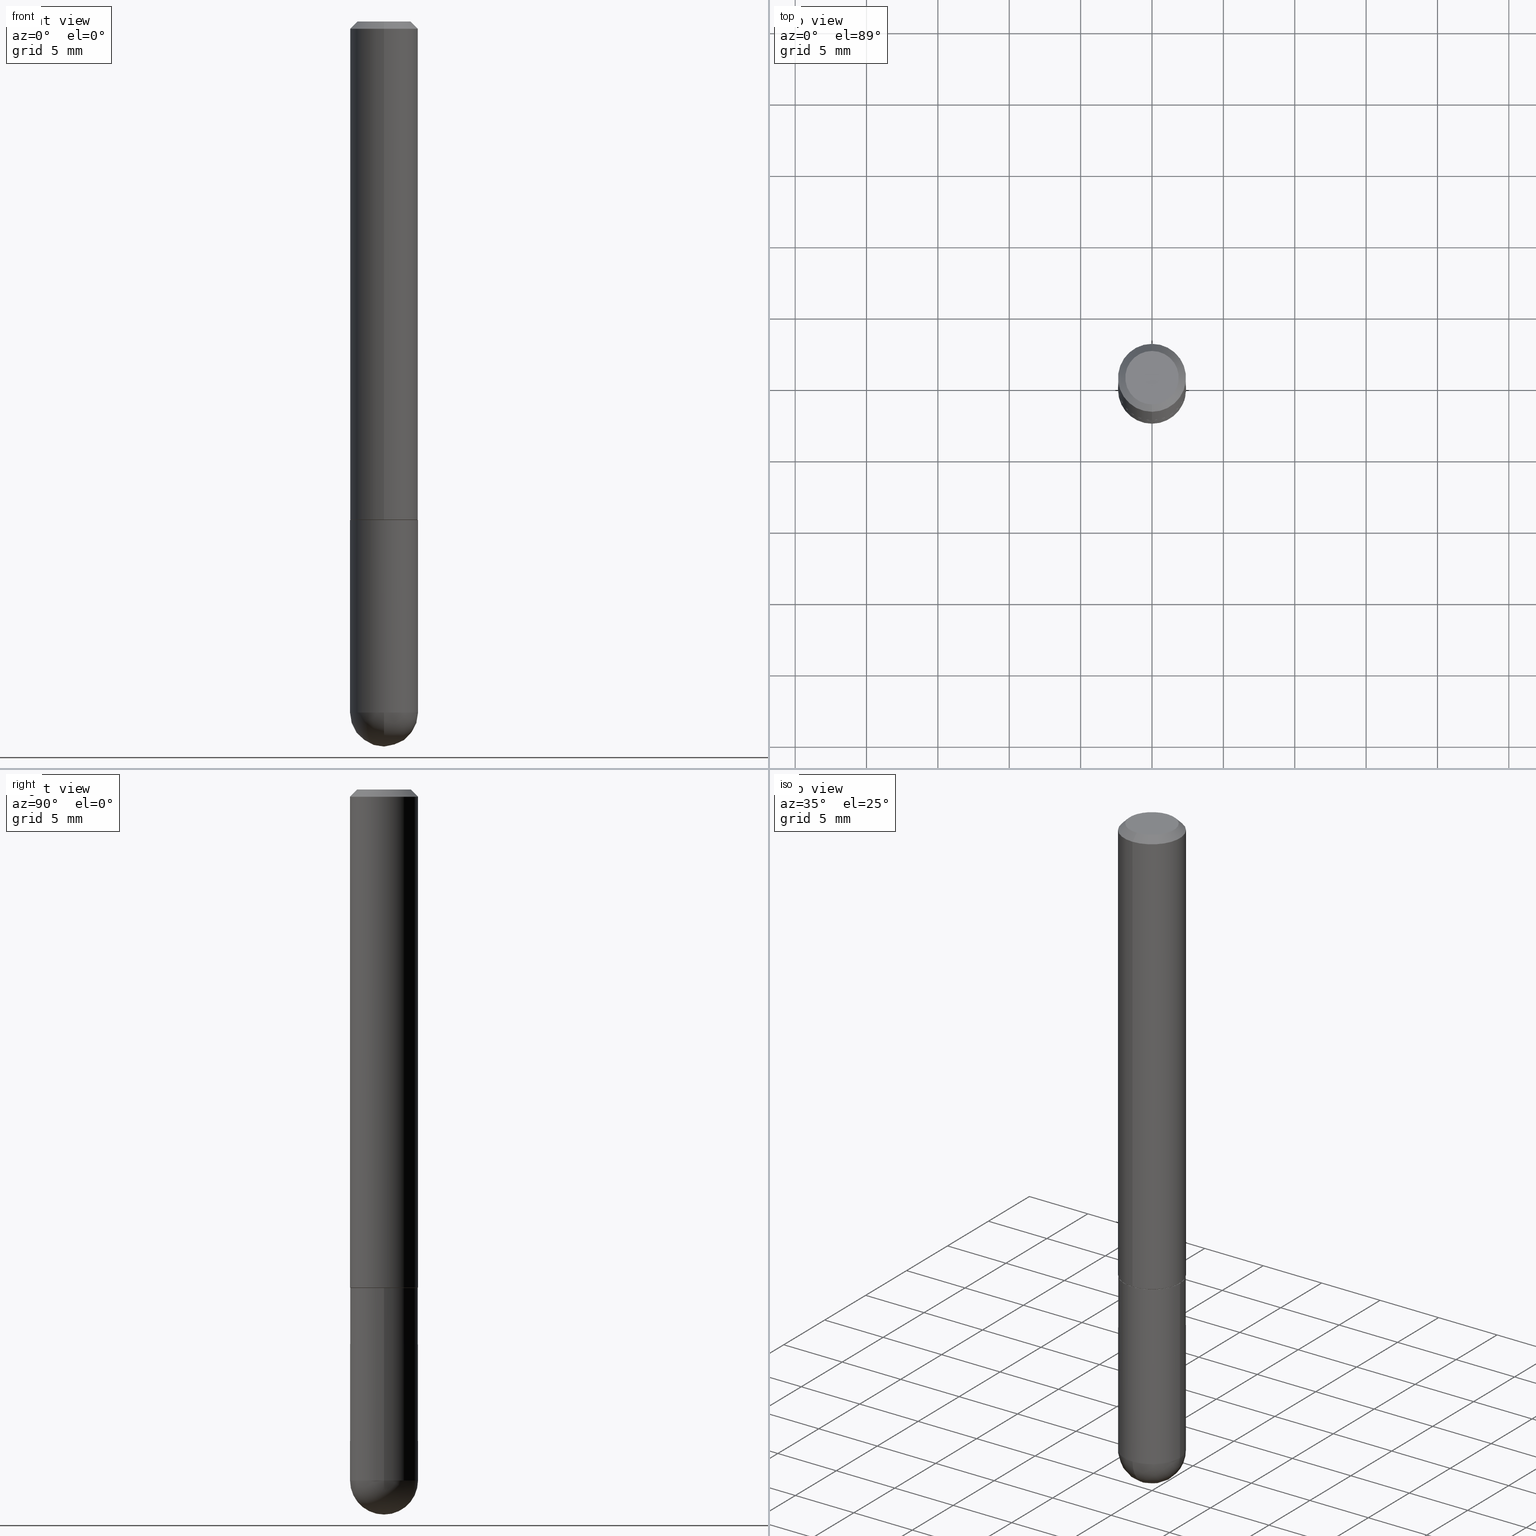
[diagram: canonical four-view strip — front | top / right | iso, engineering-drawing reading convention]
A machine part, canonical four-view strip (front | top / right | iso — engineering-drawing reading convention). The complete STEP part file that produces these views, byte-faithful:
ISO-10303-21;
HEADER;
FILE_DESCRIPTION (( 'STEP AP203' ),
    '1' );
FILE_NAME ('30124.STEP',
    '2024-02-21T16:35:22',
    ( '' ),
    ( '' ),
    'SwSTEP 2.0',
    'SolidWorks 2023',
    '' );
FILE_SCHEMA (( 'CONFIG_CONTROL_DESIGN' ));
ENDSEC;

DATA;
#1 = VERTEX_POINT ( 'NONE', #338 ) ;
#2 = ORIENTED_EDGE ( 'NONE', *, *, #300, .F. ) ;
#3 = ADVANCED_FACE ( 'NONE', ( #47 ), #171, .F. ) ;
#4 = DIRECTION ( 'NONE',  ( -2.444797333483953649E-29, 3.492442925969092620E-15, 1.000000000000000000 ) ) ;
#5 = PERSON_AND_ORGANIZATION ( #223, #316 ) ;
#6 = ADVANCED_FACE ( 'NONE', ( #319 ), #220, .T. ) ;
#7 = ORIENTED_EDGE ( 'NONE', *, *, #350, .F. ) ;
#8 = CARTESIAN_POINT ( 'NONE',  ( 6.546527510330878985E-16, 0.09374999999999991673, -0.02000000000000034736 ) ) ;
#9 = AXIS2_PLACEMENT_3D ( 'NONE', #379, #312, #182 ) ;
#10 = CIRCLE ( 'NONE', #105, 0.09375000000000001388 ) ;
#11 = DIRECTION ( 'NONE',  ( -2.444797333483953649E-29, 3.492442925969092226E-15, 1.000000000000000000 ) ) ;
#12 = DIRECTION ( 'NONE',  ( -4.937700262164843076E-15, -0.7071067811865873187, 0.7071067811865077157 ) ) ;
#13 = DIRECTION ( 'NONE',  ( -2.445468806185136597E-29, 3.491481338843145583E-15, 1.000000000000000000 ) ) ;
#14 = ORIENTED_EDGE ( 'NONE', *, *, #154, .F. ) ;
#15 = DIRECTION ( 'NONE',  ( 6.982962677686265133E-15, 1.000000000000000000, -2.913971193241872483E-15 ) ) ;
#16 = VERTEX_POINT ( 'NONE', #347 ) ;
#17 = APPROVAL ( #323, 'UNSPECIFIED' ) ;
#18 = PLANE ( 'NONE',  #9 ) ;
#19 = AXIS2_PLACEMENT_3D ( 'NONE', #215, #146, #242 ) ;
#20 = DIRECTION ( 'NONE',  ( -6.982962677686265922E-15, -1.000000000000000000, 3.492442925969091437E-15 ) ) ;
#21 = CC_DESIGN_APPROVAL ( #320, ( #144 ) ) ;
#22 = CARTESIAN_POINT ( 'NONE',  ( -6.661338147750496494E-16, -0.09375000000000702216, -1.906249999999999556 ) ) ;
#23 = ORIENTED_EDGE ( 'NONE', *, *, #154, .T. ) ;
#24 = DIRECTION ( 'NONE',  ( 2.444797333483953089E-29, -3.492442925969092620E-15, -1.000000000000000000 ) ) ;
#25 = VERTEX_POINT ( 'NONE', #22 ) ;
#26 = LINE ( 'NONE', #412, #322 ) ;
#27 = CIRCLE ( 'NONE', #363, 0.09374999999999998612 ) ;
#28 = ORIENTED_EDGE ( 'NONE', *, *, #189, .F. ) ;
#29 = CIRCLE ( 'NONE', #395, 0.07375000000000000999 ) ;
#30 = AXIS2_PLACEMENT_3D ( 'NONE', #272, #24, #306 ) ;
#31 = ORIENTED_EDGE ( 'NONE', *, *, #212, .F. ) ;
#32 = CC_DESIGN_PERSON_AND_ORGANIZATION_ASSIGNMENT ( #368, #232, ( #144 ) ) ;
#33 = DIRECTION ( 'NONE',  ( -6.982962677686265922E-15, -1.000000000000000000, 3.492442925969092620E-15 ) ) ;
#34 = DIRECTION ( 'NONE',  ( 6.982962677686266711E-15, 1.000000000000000000, -3.505871591869138487E-15 ) ) ;
#35 = AXIS2_PLACEMENT_3D ( 'NONE', #179, #309, #407 ) ;
#36 = EDGE_CURVE ( 'NONE', #16, #217, #26, .T. ) ;
#37 = DIRECTION ( 'NONE',  ( -6.982962677686266711E-15, -1.000000000000000000, 3.505871591869138487E-15 ) ) ;
#38 = DIRECTION ( 'NONE',  ( -2.445468806185136597E-29, 3.491481338843145583E-15, 1.000000000000000000 ) ) ;
#39 = VECTOR ( 'NONE', #101, 39.37007874015748143 ) ;
#40 = CARTESIAN_POINT ( 'NONE',  ( 4.563826426436916486E-29, -7.451404513955337857E-15, -2.000000000000000444 ) ) ;
#41 = SECURITY_CLASSIFICATION_LEVEL ( 'unclassified' ) ;
#42 =( NAMED_UNIT ( * ) PLANE_ANGLE_UNIT ( ) SI_UNIT ( $, .RADIAN. ) );
#43 = APPROVAL ( #71, 'UNSPECIFIED' ) ;
#44 = DIRECTION ( 'NONE',  ( -2.445468806185136597E-29, 3.491481338843145583E-15, 1.000000000000000000 ) ) ;
#45 = COORDINATED_UNIVERSAL_TIME_OFFSET ( 5, 0, .BEHIND. ) ;
#46 = SPHERICAL_SURFACE ( 'NONE', #340, 0.09375000000000026368 ) ;
#47 = FACE_OUTER_BOUND ( 'NONE', #252, .T. ) ;
#48 = CIRCLE ( 'NONE', #56, 0.09375000000000026368 ) ;
#49 = ADVANCED_FACE ( 'NONE', ( #301 ), #210, .T. ) ;
#50 = ORIENTED_EDGE ( 'NONE', *, *, #271, .T. ) ;
#51 = DIRECTION ( 'NONE',  ( -6.982962677686266711E-15, -1.000000000000000000, 2.913971193241874850E-15 ) ) ;
#52 = DIRECTION ( 'NONE',  ( 5.024295867788362157E-15, 0.7071067811865922037, 0.7071067811865028307 ) ) ;
#53 = MANIFOLD_SOLID_BREP ( 'Body-Move/Copy2[2]', #164 ) ;
#54 = CC_DESIGN_DATE_AND_TIME_ASSIGNMENT ( #335, #333, ( #144 ) ) ;
#55 = CARTESIAN_POINT ( 'NONE',  ( 0.000000000000000000, 0.000000000000000000, 0.000000000000000000 ) ) ;
#56 = AXIS2_PLACEMENT_3D ( 'NONE', #136, #226, #191 ) ;
#57 = CARTESIAN_POINT ( 'NONE',  ( -6.278726553849778280E-46, 8.969289125425528384E-32, 2.568199199114100289E-17 ) ) ;
#58 = ORIENTED_EDGE ( 'NONE', *, *, #324, .T. ) ;
#59 = CARTESIAN_POINT ( 'NONE',  ( 3.362519608504562260E-29, -4.800786840909324930E-15, -1.375000000000000000 ) ) ;
#60 = ORIENTED_EDGE ( 'NONE', *, *, #300, .T. ) ;
#61 = PRODUCT_DEFINITION_SHAPE ( 'NONE', 'NONE',  #90 ) ;
#62 = EDGE_LOOP ( 'NONE', ( #58, #60, #241, #69, #352 ) ) ;
#63 = CARTESIAN_POINT ( 'NONE',  ( -0.09375000000000001388, -5.062077756764441261E-15, -1.375000000000000000 ) ) ;
#64 = AXIS2_PLACEMENT_3D ( 'NONE', #106, #44, #198 ) ;
#65 = CARTESIAN_POINT ( 'NONE',  ( 0.000000000000000000, 0.000000000000000000, 0.000000000000000000 ) ) ;
#66 = CONICAL_SURFACE ( 'NONE', #369, 0.09274999999999999911, 0.7853981633975080090 ) ;
#67 = EDGE_CURVE ( 'NONE', #228, #163, #373, .T. ) ;
#68 = CARTESIAN_POINT ( 'NONE',  ( 3.359151536206952494E-29, -4.798616580281532316E-15, -1.373999999999999888 ) ) ;
#69 = ORIENTED_EDGE ( 'NONE', *, *, #114, .F. ) ;
#70 = DIRECTION ( 'NONE',  ( 4.937700262164538576E-15, 0.7071067811865437980, -0.7071067811865511255 ) ) ;
#71 = APPROVAL_STATUS ( 'not_yet_approved' ) ;
#72 = DIRECTION ( 'NONE',  ( -2.444797333483953649E-29, 3.492442925969092226E-15, 1.000000000000000000 ) ) ;
#73 = ORIENTED_EDGE ( 'NONE', *, *, #234, .T. ) ;
#74 = CONICAL_SURFACE ( 'NONE', #411, 0.09374999999999998612, 0.7853981633974466137 ) ;
#75 = CARTESIAN_POINT ( 'NONE',  ( 6.546527510331332580E-16, 0.09374999999999322764, -1.906250000000000222 ) ) ;
#76 = DIRECTION ( 'NONE',  ( -6.982962677686266711E-15, -1.000000000000000000, 2.913971193241874850E-15 ) ) ;
#77 = COORDINATED_UNIVERSAL_TIME_OFFSET ( 5, 0, .BEHIND. ) ;
#78 = PERSON_AND_ORGANIZATION ( #223, #316 ) ;
#79 = ORIENTED_EDGE ( 'NONE', *, *, #36, .T. ) ;
#80 = DIRECTION ( 'NONE',  ( -6.982962677686265922E-15, -1.000000000000000000, 2.945388672414299892E-15 ) ) ;
#81 = APPLICATION_CONTEXT ( 'configuration controlled 3d designs of mechanical parts and assemblies' ) ;
#82 = DIRECTION ( 'NONE',  ( -2.445468806185136597E-29, 3.491481338843145583E-15, 1.000000000000000000 ) ) ;
#83 = DIRECTION ( 'NONE',  ( 1.000000000000000000, -6.982962677686265922E-15, 4.876176775795935793E-29 ) ) ;
#84 = AXIS2_PLACEMENT_3D ( 'NONE', #59, #372, #211 ) ;
#85 = FACE_OUTER_BOUND ( 'NONE', #122, .T. ) ;
#86 = CC_DESIGN_APPROVAL ( #17, ( #90 ) ) ;
#87 = EDGE_LOOP ( 'NONE', ( #2, #351, #148, #108, #311 ) ) ;
#88 = CARTESIAN_POINT ( 'NONE',  ( 0.09375000000000001388, -6.546527510330875041E-16, 4.571415727308690506E-30 ) ) ;
#89 = ORIENTED_EDGE ( 'NONE', *, *, #187, .T. ) ;
#90 = PRODUCT_DEFINITION ( 'UNKNOWN', '', #402, #284 ) ;
#91 = ORIENTED_EDGE ( 'NONE', *, *, #399, .F. ) ;
#92 = EDGE_LOOP ( 'NONE', ( #142, #205, #109, #341 ) ) ;
#93 = APPROVAL_ROLE ( '' ) ;
#94 = CARTESIAN_POINT ( 'NONE',  ( 0.09375000000000001388, -6.382864322572621901E-15, -1.906250000000000000 ) ) ;
#95 = ADVANCED_FACE ( 'NONE', ( #85 ), #147, .F. ) ;
#96 = DIRECTION ( 'NONE',  ( 1.000000000000000000, -6.982962677686261189E-15, 0.000000000000000000 ) ) ;
#97 = AXIS2_PLACEMENT_3D ( 'NONE', #294, #38, #96 ) ;
#98 = DIRECTION ( 'NONE',  ( 1.000000000000000000, -6.982962677686261189E-15, 0.000000000000000000 ) ) ;
#99 = SHAPE_DEFINITION_REPRESENTATION ( #61, #396 ) ;
#100 = EDGE_CURVE ( 'NONE', #247, #102, #377, .T. ) ;
#101 = DIRECTION ( 'NONE',  ( -2.445468806185136877E-29, 3.491481338843145188E-15, 1.000000000000000000 ) ) ;
#102 = VERTEX_POINT ( 'NONE', #343 ) ;
#103 = CARTESIAN_POINT ( 'NONE',  ( -6.476697883553675688E-16, -0.09275000000000480083, -1.374999999999999778 ) ) ;
#104 = PERSON_AND_ORGANIZATION ( #223, #316 ) ;
#105 = AXIS2_PLACEMENT_3D ( 'NONE', #332, #334, #326 ) ;
#106 = CARTESIAN_POINT ( 'NONE',  ( 4.661674911790416638E-29, -6.655636302169745441E-15, -1.906250000000000000 ) ) ;
#107 = PERSON_AND_ORGANIZATION_ROLE ( 'design_supplier' ) ;
#108 = ORIENTED_EDGE ( 'NONE', *, *, #114, .T. ) ;
#109 = ORIENTED_EDGE ( 'NONE', *, *, #366, .F. ) ;
#110 = CARTESIAN_POINT ( 'NONE',  ( 5.848231242562249948E-16, 0.07375000000000000999, -2.318856737990796194E-16 ) ) ;
#111 = AXIS2_PLACEMENT_3D ( 'NONE', #356, #321, #34 ) ;
#112 = FACE_OUTER_BOUND ( 'NONE', #370, .T. ) ;
#113 = FACE_OUTER_BOUND ( 'NONE', #62, .T. ) ;
#114 = EDGE_CURVE ( 'NONE', #245, #163, #404, .T. ) ;
#115 = DIRECTION ( 'NONE',  ( -6.982962677686266711E-15, -1.000000000000000000, 3.505871591869138487E-15 ) ) ;
#116 = ORIENTED_EDGE ( 'NONE', *, *, #251, .F. ) ;
#117 = AXIS2_PLACEMENT_3D ( 'NONE', #299, #186, #33 ) ;
#118 = CYLINDRICAL_SURFACE ( 'NONE', #19, 0.09375000000000009714 ) ;
#119 = EDGE_LOOP ( 'NONE', ( #130, #173, #196, #266 ) ) ;
#120 = ADVANCED_FACE ( 'NONE', ( #112 ), #18, .F. ) ;
#121 = DIRECTION ( 'NONE',  ( -2.444797333483953649E-29, 3.492442925969092226E-15, 1.000000000000000000 ) ) ;
#122 = EDGE_LOOP ( 'NONE', ( #23, #287 ) ) ;
#123 = VECTOR ( 'NONE', #4, 39.37007874015748143 ) ;
#124 = EDGE_LOOP ( 'NONE', ( #28, #405, #116, #243 ) ) ;
#125 = APPLICATION_CONTEXT ( 'configuration controlled 3d designs of mechanical parts and assemblies' ) ;
#126 = EDGE_CURVE ( 'NONE', #16, #102, #408, .T. ) ;
#127 = DIRECTION ( 'NONE',  ( -4.851104656540954809E-15, -0.7071067811865486830, -0.7071067811865462405 ) ) ;
#128 = AXIS2_PLACEMENT_3D ( 'NONE', #310, #349, #270 ) ;
#129 = LOCAL_TIME ( 11, 35, 22.00000000000000000, #218 ) ;
#130 = ORIENTED_EDGE ( 'NONE', *, *, #100, .F. ) ;
#131 = PERSON_AND_ORGANIZATION ( #223, #316 ) ;
#132 = AXIS2_PLACEMENT_3D ( 'NONE', #165, #362, #360 ) ;
#133 = CC_DESIGN_PERSON_AND_ORGANIZATION_ASSIGNMENT ( #388, #169, ( #402 ) ) ;
#134 = CARTESIAN_POINT ( 'NONE',  ( -6.476697883553675688E-16, -0.09275000000000480083, -1.374999999999999778 ) ) ;
#135 = UNCERTAINTY_MEASURE_WITH_UNIT (LENGTH_MEASURE( 1.000000000000000082E-05 ), #397, 'distance_accuracy_value', 'NONE');
#136 = CARTESIAN_POINT ( 'NONE',  ( 4.330555133876530390E-29, -7.129818670309794948E-15, -1.906250000000000000 ) ) ;
#137 = AXIS2_PLACEMENT_3D ( 'NONE', #65, #354, #83 ) ;
#138 = LINE ( 'NONE', #8, #386 ) ;
#139 = DATE_TIME_ROLE ( 'creation_date' ) ;
#140 = ORIENTED_EDGE ( 'NONE', *, *, #259, .F. ) ;
#141 = CARTESIAN_POINT ( 'NONE',  ( 6.546527510330878985E-16, 0.09374999999999991673, -0.02000000000000034736 ) ) ;
#142 = ORIENTED_EDGE ( 'NONE', *, *, #283, .F. ) ;
#143 = FACE_OUTER_BOUND ( 'NONE', #233, .T. ) ;
#144 = SECURITY_CLASSIFICATION ( '', '', #41 ) ;
#145 = AXIS2_PLACEMENT_3D ( 'NONE', #409, #342, #174 ) ;
#146 = DIRECTION ( 'NONE',  ( -2.444797333483953649E-29, 3.492442925969092226E-15, 1.000000000000000000 ) ) ;
#147 = PLANE ( 'NONE',  #30 ) ;
#148 = ORIENTED_EDGE ( 'NONE', *, *, #385, .T. ) ;
#149 = AXIS2_PLACEMENT_3D ( 'NONE', #257, #344, #80 ) ;
#150 = FACE_OUTER_BOUND ( 'NONE', #92, .T. ) ;
#151 = ORIENTED_EDGE ( 'NONE', *, *, #329, .F. ) ;
#152 = ADVANCED_FACE ( 'NONE', ( #238 ), #118, .T. ) ;
#153 = CARTESIAN_POINT ( 'NONE',  ( 3.359151536206952494E-29, -4.798616580281532316E-15, -1.373999999999999888 ) ) ;
#154 = EDGE_CURVE ( 'NONE', #216, #273, #193, .T. ) ;
#155 = ORIENTED_EDGE ( 'NONE', *, *, #126, .T. ) ;
#156 = ORIENTED_EDGE ( 'NONE', *, *, #67, .T. ) ;
#157 = LINE ( 'NONE', #279, #253 ) ;
#158 = PERSON_AND_ORGANIZATION ( #223, #316 ) ;
#159 = CARTESIAN_POINT ( 'NONE',  ( 6.625811010963275384E-16, 0.09274999999999521128, -1.375000000000000222 ) ) ;
#160 = CIRCLE ( 'NONE', #176, 0.09374999999999998612 ) ;
#161 = MECHANICAL_CONTEXT ( 'NONE', #125, 'mechanical' ) ;
#162 = CC_DESIGN_PERSON_AND_ORGANIZATION_ASSIGNMENT ( #158, #358, ( #318 ) ) ;
#163 = VERTEX_POINT ( 'NONE', #276 ) ;
#164 = CLOSED_SHELL ( 'NONE', ( #200, #152, #246, #267, #49, #355, #3, #95 ) ) ;
#165 = CARTESIAN_POINT ( 'NONE',  ( 4.661674911790416638E-29, -6.655636302169745441E-15, -1.906250000000000000 ) ) ;
#166 = CIRCLE ( 'NONE', #298, 0.09274999999999999911 ) ;
#167 = FACE_OUTER_BOUND ( 'NONE', #124, .T. ) ;
#168 = DIRECTION ( 'NONE',  ( -6.982962677686265922E-15, -1.000000000000000000, 2.945388672414299892E-15 ) ) ;
#169 = PERSON_AND_ORGANIZATION_ROLE ( 'creator' ) ;
#170 = FACE_OUTER_BOUND ( 'NONE', #119, .T. ) ;
#171 = PLANE ( 'NONE',  #117 ) ;
#172 = LOCAL_TIME ( 11, 35, 22.00000000000000000, #361 ) ;
#173 = ORIENTED_EDGE ( 'NONE', *, *, #350, .T. ) ;
#174 = DIRECTION ( 'NONE',  ( 6.982962677686265133E-15, 1.000000000000000000, -2.913971193241872483E-15 ) ) ;
#175 = DIRECTION ( 'NONE',  ( 1.000000000000000000, -6.982962677686265922E-15, 4.876176775795935793E-29 ) ) ;
#176 = AXIS2_PLACEMENT_3D ( 'NONE', #258, #262, #37 ) ;
#177 = DIRECTION ( 'NONE',  ( -2.444797333483953649E-29, 3.492442925969092226E-15, 1.000000000000000000 ) ) ;
#178 = LINE ( 'NONE', #308, #123 ) ;
#179 = CARTESIAN_POINT ( 'NONE',  ( 0.000000000000000000, 0.000000000000000000, 0.000000000000000000 ) ) ;
#180 = DIRECTION ( 'NONE',  ( -2.444797333483953649E-29, 3.492442925969092226E-15, 1.000000000000000000 ) ) ;
#181 = ORIENTED_EDGE ( 'NONE', *, *, #399, .T. ) ;
#182 = DIRECTION ( 'NONE',  ( -1.000000000000000000, 6.982962677686265922E-15, -4.876176775795935793E-29 ) ) ;
#183 = ORIENTED_EDGE ( 'NONE', *, *, #376, .T. ) ;
#184 = AXIS2_PLACEMENT_3D ( 'NONE', #190, #391, #224 ) ;
#185 = EDGE_LOOP ( 'NONE', ( #265, #277, #79, #317 ) ) ;
#186 = DIRECTION ( 'NONE',  ( -2.444797333483953089E-29, 3.492442925969092620E-15, 1.000000000000000000 ) ) ;
#187 = EDGE_CURVE ( 'NONE', #348, #217, #27, .T. ) ;
#188 = CIRCLE ( 'NONE', #97, 0.09375000000000001388 ) ;
#189 = EDGE_CURVE ( 'NONE', #375, #307, #401, .T. ) ;
#190 = CARTESIAN_POINT ( 'NONE',  ( 3.361596333540435988E-29, -4.802109023207501761E-15, -1.375000000000000000 ) ) ;
#191 = DIRECTION ( 'NONE',  ( -7.105427357601001070E-15, -1.000000000000000000, 0.000000000000000000 ) ) ;
#192 = CALENDAR_DATE ( 2024, 21, 2 ) ;
#193 = CIRCLE ( 'NONE', #248, 0.07375000000000000999 ) ;
#194 = CARTESIAN_POINT ( 'NONE',  ( -6.278726553849778280E-46, 8.969289125425528384E-32, 2.568199199114100289E-17 ) ) ;
#195 = CONICAL_SURFACE ( 'NONE', #111, 0.09374999999999998612, 0.7853981633974466137 ) ;
#196 = ORIENTED_EDGE ( 'NONE', *, *, #329, .T. ) ;
#197 = ADVANCED_FACE ( 'NONE', ( #150 ), #208, .T. ) ;
#198 = DIRECTION ( 'NONE',  ( 1.000000000000000000, -6.982962677686261189E-15, 0.000000000000000000 ) ) ;
#199 = DATE_AND_TIME ( #286, #219 ) ;
#200 = ADVANCED_FACE ( 'NONE', ( #143 ), #66, .T. ) ;
#201 = CARTESIAN_POINT ( 'NONE',  ( 4.330555133876530390E-29, -7.129818670309794948E-15, -1.906250000000000000 ) ) ;
#202 = APPROVAL_STATUS ( 'not_yet_approved' ) ;
#203 = LENGTH_MEASURE_WITH_UNIT ( LENGTH_MEASURE( 0.02539999999999999897 ), #231 );
#204 = MANIFOLD_SOLID_BREP ( 'Body-Move/Copy2[1]', #394 ) ;
#205 = ORIENTED_EDGE ( 'NONE', *, *, #189, .T. ) ;
#206 =( GEOMETRIC_REPRESENTATION_CONTEXT ( 3 ) GLOBAL_UNCERTAINTY_ASSIGNED_CONTEXT ( ( #135 ) ) GLOBAL_UNIT_ASSIGNED_CONTEXT ( ( #397, #42, #290 ) ) REPRESENTATION_CONTEXT ( 'NONE', 'WORKASPACE' ) );
#207 = CARTESIAN_POINT ( 'NONE',  ( -6.431716872910804923E-16, -0.09375000000000005551, -0.01999999999999968817 ) ) ;
#208 = SPHERICAL_SURFACE ( 'NONE', #145, 0.09375000000000026368 ) ;
#209 = ADVANCED_FACE ( 'NONE', ( #113 ), #237, .T. ) ;
#210 = CYLINDRICAL_SURFACE ( 'NONE', #339, 0.09375000000000009714 ) ;
#211 = DIRECTION ( 'NONE',  ( 1.000000000000000000, -6.982962677686261189E-15, 0.000000000000000000 ) ) ;
#212 = EDGE_CURVE ( 'NONE', #378, #247, #380, .T. ) ;
#213 = DIRECTION ( 'NONE',  ( -2.445468806185136877E-29, 3.491481338843145188E-15, 1.000000000000000000 ) ) ;
#214 = ORIENTED_EDGE ( 'NONE', *, *, #36, .F. ) ;
#215 = CARTESIAN_POINT ( 'NONE',  ( 0.000000000000000000, 0.000000000000000000, 0.000000000000000000 ) ) ;
#216 = VERTEX_POINT ( 'NONE', #110 ) ;
#217 = VERTEX_POINT ( 'NONE', #207 ) ;
#218 = COORDINATED_UNIVERSAL_TIME_OFFSET ( 5, 0, .BEHIND. ) ;
#219 = LOCAL_TIME ( 11, 35, 22.00000000000000000, #45 ) ;
#220 = CYLINDRICAL_SURFACE ( 'NONE', #137, 0.09375000000000001388 ) ;
#221 = EDGE_CURVE ( 'NONE', #102, #348, #178, .T. ) ;
#222 = FACE_OUTER_BOUND ( 'NONE', #278, .T. ) ;
#223 = PERSON ( 'UNSPECIFIED', 'UNSPECIFIED', 'UNSPECIFIED', ('UNSPECIFIED'), ('UNSPECIFIED'), ('UNSPECIFIED') ) ;
#224 = DIRECTION ( 'NONE',  ( -6.982962677686265922E-15, -1.000000000000000000, 2.945388672414299892E-15 ) ) ;
#225 = APPROVAL_DATE_TIME ( #281, #17 ) ;
#226 = DIRECTION ( 'NONE',  ( -1.000000000000000000, 7.105427357601001070E-15, -4.926315508542082329E-29 ) ) ;
#227 = APPROVAL_DATE_TIME ( #199, #43 ) ;
#228 = VERTEX_POINT ( 'NONE', #63 ) ;
#229 = COORDINATED_UNIVERSAL_TIME_OFFSET ( 5, 0, .BEHIND. ) ;
#230 = APPROVAL_PERSON_ORGANIZATION ( #78, #43, #261 ) ;
#231 =( LENGTH_UNIT ( ) NAMED_UNIT ( * ) SI_UNIT ( $, .METRE. ) );
#232 = PERSON_AND_ORGANIZATION_ROLE ( 'classification_officer' ) ;
#233 = EDGE_LOOP ( 'NONE', ( #314, #384, #382, #151 ) ) ;
#234 = EDGE_CURVE ( 'NONE', #273, #217, #157, .T. ) ;
#235 = AXIS2_PLACEMENT_3D ( 'NONE', #153, #180, #51 ) ;
#236 = CIRCLE ( 'NONE', #132, 0.09375000000000001388 ) ;
#237 = CYLINDRICAL_SURFACE ( 'NONE', #302, 0.09375000000000001388 ) ;
#238 = FACE_OUTER_BOUND ( 'NONE', #274, .T. ) ;
#239 = PRODUCT_RELATED_PRODUCT_CATEGORY ( 'detail', '', ( #318 ) ) ;
#240 = DIRECTION ( 'NONE',  ( -6.982962677686265922E-15, -1.000000000000000000, 2.945388672414299892E-15 ) ) ;
#241 = ORIENTED_EDGE ( 'NONE', *, *, #376, .F. ) ;
#242 = DIRECTION ( 'NONE',  ( -6.982962677686265922E-15, -1.000000000000000000, 3.492442925969091437E-15 ) ) ;
#243 = ORIENTED_EDGE ( 'NONE', *, *, #324, .F. ) ;
#244 = DIRECTION ( 'NONE',  ( -6.982962677686265922E-15, -1.000000000000000000, 3.492442925969092226E-15 ) ) ;
#245 = VERTEX_POINT ( 'NONE', #94 ) ;
#246 = ADVANCED_FACE ( 'NONE', ( #222 ), #195, .T. ) ;
#247 = VERTEX_POINT ( 'NONE', #159 ) ;
#248 = AXIS2_PLACEMENT_3D ( 'NONE', #57, #121, #244 ) ;
#249 = CC_DESIGN_SECURITY_CLASSIFICATION ( #144, ( #402 ) ) ;
#250 = CALENDAR_DATE ( 2024, 21, 2 ) ;
#251 = EDGE_CURVE ( 'NONE', #1, #25, #236, .T. ) ;
#252 = EDGE_LOOP ( 'NONE', ( #31, #7 ) ) ;
#253 = VECTOR ( 'NONE', #127, 39.37007874015748854 ) ;
#254 = FACE_OUTER_BOUND ( 'NONE', #398, .T. ) ;
#255 = CALENDAR_DATE ( 2024, 21, 2 ) ;
#256 = ORIENTED_EDGE ( 'NONE', *, *, #234, .F. ) ;
#257 = CARTESIAN_POINT ( 'NONE',  ( 3.361596333540435988E-29, -4.802109023207501761E-15, -1.375000000000000000 ) ) ;
#258 = CARTESIAN_POINT ( 'NONE',  ( 4.889594666967911153E-31, -6.984885851938190023E-17, -0.02000000000000001776 ) ) ;
#259 = EDGE_CURVE ( 'NONE', #273, #216, #29, .T. ) ;
#260 = CARTESIAN_POINT ( 'NONE',  ( -0.09375000000000001388, 6.661338147750940229E-16, -4.611501647113973995E-30 ) ) ;
#261 = APPROVAL_ROLE ( '' ) ;
#262 = DIRECTION ( 'NONE',  ( -2.444797333483953649E-29, 3.492442925969092226E-15, 1.000000000000000000 ) ) ;
#263 = DATE_AND_TIME ( #192, #264 ) ;
#264 = LOCAL_TIME ( 11, 35, 22.00000000000000000, #229 ) ;
#265 = ORIENTED_EDGE ( 'NONE', *, *, #221, .F. ) ;
#266 = ORIENTED_EDGE ( 'NONE', *, *, #315, .F. ) ;
#267 = ADVANCED_FACE ( 'NONE', ( #254 ), #74, .T. ) ;
#268 = CARTESIAN_POINT ( 'NONE',  ( 3.361596333540435988E-29, -4.802109023207501761E-15, -1.375000000000000000 ) ) ;
#269 = CIRCLE ( 'NONE', #64, 0.09375000000000001388 ) ;
#270 = DIRECTION ( 'NONE',  ( 6.982962677686265133E-15, 1.000000000000000000, 0.000000000000000000 ) ) ;
#271 = EDGE_CURVE ( 'NONE', #216, #348, #138, .T. ) ;
#272 = CARTESIAN_POINT ( 'NONE',  ( 5.149934974793621896E-16, 0.07375000000000000999, -2.447266697946501316E-16 ) ) ;
#273 = VERTEX_POINT ( 'NONE', #292 ) ;
#274 = EDGE_LOOP ( 'NONE', ( #155, #381, #91, #214 ) ) ;
#275 = AXIS2_PLACEMENT_3D ( 'NONE', #68, #11, #76 ) ;
#276 = CARTESIAN_POINT ( 'NONE',  ( 0.09375000000000001388, -5.455439591942412434E-15, -1.375000000000000000 ) ) ;
#277 = ORIENTED_EDGE ( 'NONE', *, *, #315, .T. ) ;
#278 = EDGE_LOOP ( 'NONE', ( #140, #73, #181, #410 ) ) ;
#279 = CARTESIAN_POINT ( 'NONE',  ( -6.431716872910804923E-16, -0.09375000000000005551, -0.01999999999999968817 ) ) ;
#280 = APPLICATION_PROTOCOL_DEFINITION ( 'international standard', 'config_control_design', 1994, #81 ) ;
#281 = DATE_AND_TIME ( #250, #129 ) ;
#282 = CONICAL_SURFACE ( 'NONE', #184, 0.09274999999999999911, 0.7853981633975080090 ) ;
#283 = EDGE_CURVE ( 'NONE', #375, #25, #48, .T. ) ;
#284 = DESIGN_CONTEXT ( 'detailed design', #81, 'design' ) ;
#285 = LINE ( 'NONE', #103, #325 ) ;
#286 = CALENDAR_DATE ( 2024, 21, 2 ) ;
#287 = ORIENTED_EDGE ( 'NONE', *, *, #259, .T. ) ;
#288 = APPROVAL_PERSON_ORGANIZATION ( #5, #17, #93 ) ;
#289 = DIRECTION ( 'NONE',  ( 2.444797333483953649E-29, -3.492442925969092226E-15, -1.000000000000000000 ) ) ;
#290 =( NAMED_UNIT ( * ) SI_UNIT ( $, .STERADIAN. ) SOLID_ANGLE_UNIT ( ) );
#291 = CC_DESIGN_PERSON_AND_ORGANIZATION_ASSIGNMENT ( #365, #107, ( #402 ) ) ;
#292 = CARTESIAN_POINT ( 'NONE',  ( -5.745667073133654568E-16, -0.07375000000000000999, 2.832496577813616190E-16 ) ) ;
#293 = PERSON_AND_ORGANIZATION_ROLE ( 'creator' ) ;
#294 = CARTESIAN_POINT ( 'NONE',  ( 3.362519608504562260E-29, -4.800786840909324930E-15, -1.375000000000000000 ) ) ;
#295 = CALENDAR_DATE ( 2024, 21, 2 ) ;
#296 = DIRECTION ( 'NONE',  ( -1.000000000000000000, 6.982962677686265133E-15, -4.883557194083112901E-29 ) ) ;
#297 = CC_DESIGN_APPROVAL ( #43, ( #402 ) ) ;
#298 = AXIS2_PLACEMENT_3D ( 'NONE', #327, #72, #168 ) ;
#299 = CARTESIAN_POINT ( 'NONE',  ( 3.361596333540435988E-29, -4.802109023207501761E-15, -1.375000000000000000 ) ) ;
#300 = EDGE_CURVE ( 'NONE', #1, #228, #336, .T. ) ;
#301 = FACE_OUTER_BOUND ( 'NONE', #185, .T. ) ;
#302 = AXIS2_PLACEMENT_3D ( 'NONE', #371, #82, #175 ) ;
#303 = DIRECTION ( 'NONE',  ( -2.444797333483953649E-29, 3.492442925969092620E-15, 1.000000000000000000 ) ) ;
#304 = DIMENSIONAL_EXPONENTS ( 1.000000000000000000, 0.000000000000000000, 0.000000000000000000, 0.000000000000000000, 0.000000000000000000, 0.000000000000000000, 0.000000000000000000 ) ;
#305 = CIRCLE ( 'NONE', #275, 0.09375000000000019429 ) ;
#306 = DIRECTION ( 'NONE',  ( 6.982962677686265922E-15, 1.000000000000000000, -3.492442925969092620E-15 ) ) ;
#307 = VERTEX_POINT ( 'NONE', #75 ) ;
#308 = CARTESIAN_POINT ( 'NONE',  ( 6.661338147750944173E-16, 0.09375000000000009714, -3.274165243096026796E-16 ) ) ;
#309 = DIRECTION ( 'NONE',  ( 0.000000000000000000, 0.000000000000000000, 1.000000000000000000 ) ) ;
#310 = CARTESIAN_POINT ( 'NONE',  ( 4.330555133876530390E-29, -7.129818670309794948E-15, -1.906250000000000000 ) ) ;
#311 = ORIENTED_EDGE ( 'NONE', *, *, #67, .F. ) ;
#312 = DIRECTION ( 'NONE',  ( 2.438088387897960049E-29, -3.491481338843145188E-15, -1.000000000000000000 ) ) ;
#313 = VECTOR ( 'NONE', #52, 39.37007874015748143 ) ;
#314 = ORIENTED_EDGE ( 'NONE', *, *, #212, .T. ) ;
#315 = EDGE_CURVE ( 'NONE', #102, #16, #305, .T. ) ;
#316 = ORGANIZATION ( 'UNSPECIFIED', 'UNSPECIFIED', '' ) ;
#317 = ORIENTED_EDGE ( 'NONE', *, *, #187, .F. ) ;
#318 = PRODUCT ( '30124', '30124', '', ( #161 ) ) ;
#319 = FACE_OUTER_BOUND ( 'NONE', #87, .T. ) ;
#320 = APPROVAL ( #202, 'UNSPECIFIED' ) ;
#321 = DIRECTION ( 'NONE',  ( 2.444797333483953649E-29, -3.492442925969092226E-15, -1.000000000000000000 ) ) ;
#322 = VECTOR ( 'NONE', #303, 39.37007874015748143 ) ;
#323 = APPROVAL_STATUS ( 'not_yet_approved' ) ;
#324 = EDGE_CURVE ( 'NONE', #307, #1, #269, .T. ) ;
#325 = VECTOR ( 'NONE', #12, 39.37007874015748143 ) ;
#326 = DIRECTION ( 'NONE',  ( 1.000000000000000000, -6.982962677686261189E-15, 0.000000000000000000 ) ) ;
#327 = CARTESIAN_POINT ( 'NONE',  ( 3.361596333540435988E-29, -4.802109023207501761E-15, -1.375000000000000000 ) ) ;
#328 = APPROVAL_DATE_TIME ( #263, #320 ) ;
#329 = EDGE_CURVE ( 'NONE', #378, #16, #285, .T. ) ;
#330 = VECTOR ( 'NONE', #213, 39.37007874015748143 ) ;
#331 = LOCAL_TIME ( 11, 35, 22.00000000000000000, #77 ) ;
#332 = CARTESIAN_POINT ( 'NONE',  ( 4.661674911790416638E-29, -6.655636302169745441E-15, -1.906250000000000000 ) ) ;
#333 = DATE_TIME_ROLE ( 'classification_date' ) ;
#334 = DIRECTION ( 'NONE',  ( -2.445468806185136597E-29, 3.491481338843145583E-15, 1.000000000000000000 ) ) ;
#335 = DATE_AND_TIME ( #255, #331 ) ;
#336 = LINE ( 'NONE', #260, #39 ) ;
#337 = APPROVAL_ROLE ( '' ) ;
#338 = CARTESIAN_POINT ( 'NONE',  ( -0.09375000000000001388, -5.062077756764441261E-15, -1.906250000000000000 ) ) ;
#339 = AXIS2_PLACEMENT_3D ( 'NONE', #55, #374, #20 ) ;
#340 = AXIS2_PLACEMENT_3D ( 'NONE', #201, #296, #15 ) ;
#341 = ORIENTED_EDGE ( 'NONE', *, *, #385, .F. ) ;
#342 = DIRECTION ( 'NONE',  ( -1.000000000000000000, 6.982962677686265133E-15, -4.883557194083112901E-29 ) ) ;
#343 = CARTESIAN_POINT ( 'NONE',  ( 6.661338147751117722E-16, 0.09374999999999537870, -1.374000000000000110 ) ) ;
#344 = DIRECTION ( 'NONE',  ( -2.444797333483953649E-29, 3.492442925969092226E-15, 1.000000000000000000 ) ) ;
#345 = CARTESIAN_POINT ( 'NONE',  ( 4.889594666967911153E-31, -6.984885851938190023E-17, -0.02000000000000001776 ) ) ;
#346 = CIRCLE ( 'NONE', #353, 0.09375000000000001388 ) ;
#347 = CARTESIAN_POINT ( 'NONE',  ( -6.546527510330552594E-16, -0.09375000000000499600, -1.373999999999999666 ) ) ;
#348 = VERTEX_POINT ( 'NONE', #141 ) ;
#349 = DIRECTION ( 'NONE',  ( 1.000000000000000000, -6.982962677686265922E-15, 4.883557194083112340E-29 ) ) ;
#350 = EDGE_CURVE ( 'NONE', #247, #378, #166, .T. ) ;
#351 = ORIENTED_EDGE ( 'NONE', *, *, #251, .T. ) ;
#352 = ORIENTED_EDGE ( 'NONE', *, *, #366, .T. ) ;
#353 = AXIS2_PLACEMENT_3D ( 'NONE', #387, #13, #98 ) ;
#354 = DIRECTION ( 'NONE',  ( -2.445468806185136597E-29, 3.491481338843145583E-15, 1.000000000000000000 ) ) ;
#355 = ADVANCED_FACE ( 'NONE', ( #170 ), #282, .T. ) ;
#356 = CARTESIAN_POINT ( 'NONE',  ( 4.889594666967911153E-31, -6.984885851938190023E-17, -0.02000000000000001776 ) ) ;
#357 = CARTESIAN_POINT ( 'NONE',  ( 4.889594666967911153E-31, -6.984885851938190023E-17, -0.02000000000000001776 ) ) ;
#358 = PERSON_AND_ORGANIZATION_ROLE ( 'design_owner' ) ;
#359 = CC_DESIGN_DATE_AND_TIME_ASSIGNMENT ( #393, #139, ( #90 ) ) ;
#360 = DIRECTION ( 'NONE',  ( 1.000000000000000000, -6.982962677686261189E-15, 0.000000000000000000 ) ) ;
#361 = COORDINATED_UNIVERSAL_TIME_OFFSET ( 5, 0, .BEHIND. ) ;
#362 = DIRECTION ( 'NONE',  ( -2.445468806185136597E-29, 3.491481338843145583E-15, 1.000000000000000000 ) ) ;
#363 = AXIS2_PLACEMENT_3D ( 'NONE', #345, #177, #115 ) ;
#364 = DIRECTION ( 'NONE',  ( -6.982962677686265922E-15, -1.000000000000000000, 3.492442925969092226E-15 ) ) ;
#365 = PERSON_AND_ORGANIZATION ( #223, #316 ) ;
#366 = EDGE_CURVE ( 'NONE', #245, #307, #10, .T. ) ;
#367 = DIRECTION ( 'NONE',  ( 6.982962677686266711E-15, 1.000000000000000000, -3.505871591869138487E-15 ) ) ;
#368 = PERSON_AND_ORGANIZATION ( #223, #316 ) ;
#369 = AXIS2_PLACEMENT_3D ( 'NONE', #268, #400, #240 ) ;
#370 = EDGE_LOOP ( 'NONE', ( #183, #156 ) ) ;
#371 = CARTESIAN_POINT ( 'NONE',  ( 0.000000000000000000, 0.000000000000000000, 0.000000000000000000 ) ) ;
#372 = DIRECTION ( 'NONE',  ( -2.445468806185136597E-29, 3.491481338843145583E-15, 1.000000000000000000 ) ) ;
#373 = CIRCLE ( 'NONE', #84, 0.09375000000000001388 ) ;
#374 = DIRECTION ( 'NONE',  ( -2.444797333483953649E-29, 3.492442925969092226E-15, 1.000000000000000000 ) ) ;
#375 = VERTEX_POINT ( 'NONE', #40 ) ;
#376 = EDGE_CURVE ( 'NONE', #163, #228, #188, .T. ) ;
#377 = LINE ( 'NONE', #403, #313 ) ;
#378 = VERTEX_POINT ( 'NONE', #134 ) ;
#379 = CARTESIAN_POINT ( 'NONE',  ( 6.546527510331211293E-16, 0.09374999999999521216, -1.375000000000000222 ) ) ;
#380 = CIRCLE ( 'NONE', #149, 0.09274999999999999911 ) ;
#381 = ORIENTED_EDGE ( 'NONE', *, *, #221, .T. ) ;
#382 = ORIENTED_EDGE ( 'NONE', *, *, #126, .F. ) ;
#383 = APPROVAL_PERSON_ORGANIZATION ( #104, #320, #337 ) ;
#384 = ORIENTED_EDGE ( 'NONE', *, *, #100, .T. ) ;
#385 = EDGE_CURVE ( 'NONE', #25, #245, #346, .T. ) ;
#386 = VECTOR ( 'NONE', #70, 39.37007874015748854 ) ;
#387 = CARTESIAN_POINT ( 'NONE',  ( 4.661674911790416638E-29, -6.655636302169745441E-15, -1.906250000000000000 ) ) ;
#388 = PERSON_AND_ORGANIZATION ( #223, #316 ) ;
#389 = DIRECTION ( 'NONE',  ( -2.444797333483953649E-29, 3.492442925969092226E-15, 1.000000000000000000 ) ) ;
#390 = APPLICATION_PROTOCOL_DEFINITION ( 'international standard', 'config_control_design', 1994, #125 ) ;
#391 = DIRECTION ( 'NONE',  ( -2.444797333483953649E-29, 3.492442925969092226E-15, 1.000000000000000000 ) ) ;
#392 = CC_DESIGN_PERSON_AND_ORGANIZATION_ASSIGNMENT ( #131, #293, ( #90 ) ) ;
#393 = DATE_AND_TIME ( #295, #172 ) ;
#394 = CLOSED_SHELL ( 'NONE', ( #209, #406, #197, #120, #6 ) ) ;
#395 = AXIS2_PLACEMENT_3D ( 'NONE', #194, #389, #364 ) ;
#396 = ADVANCED_BREP_SHAPE_REPRESENTATION ( '30124', ( #204, #53, #35 ), #206 ) ;
#397 =( CONVERSION_BASED_UNIT ( 'INCH', #203 ) LENGTH_UNIT ( ) NAMED_UNIT ( #304 ) );
#398 = EDGE_LOOP ( 'NONE', ( #256, #14, #50, #89 ) ) ;
#399 = EDGE_CURVE ( 'NONE', #217, #348, #160, .T. ) ;
#400 = DIRECTION ( 'NONE',  ( -2.444797333483953649E-29, 3.492442925969092226E-15, 1.000000000000000000 ) ) ;
#401 = CIRCLE ( 'NONE', #128, 0.09375000000000026368 ) ;
#402 = PRODUCT_DEFINITION_FORMATION_WITH_SPECIFIED_SOURCE ( 'ANY', '', #318, .NOT_KNOWN. ) ;
#403 = CARTESIAN_POINT ( 'NONE',  ( 6.590283874175264427E-16, 0.09274999999999521128, -1.375000000000000222 ) ) ;
#404 = LINE ( 'NONE', #88, #330 ) ;
#405 = ORIENTED_EDGE ( 'NONE', *, *, #283, .T. ) ;
#406 = ADVANCED_FACE ( 'NONE', ( #167 ), #46, .T. ) ;
#407 = DIRECTION ( 'NONE',  ( 1.000000000000000000, 0.000000000000000000, 0.000000000000000000 ) ) ;
#408 = CIRCLE ( 'NONE', #235, 0.09375000000000019429 ) ;
#409 = CARTESIAN_POINT ( 'NONE',  ( 4.330555133876530390E-29, -7.129818670309794948E-15, -1.906250000000000000 ) ) ;
#410 = ORIENTED_EDGE ( 'NONE', *, *, #271, .F. ) ;
#411 = AXIS2_PLACEMENT_3D ( 'NONE', #357, #289, #367 ) ;
#412 = CARTESIAN_POINT ( 'NONE',  ( -6.546527510330880958E-16, -0.09375000000000009714, 3.274165243096026796E-16 ) ) ;
ENDSEC;
END-ISO-10303-21;
